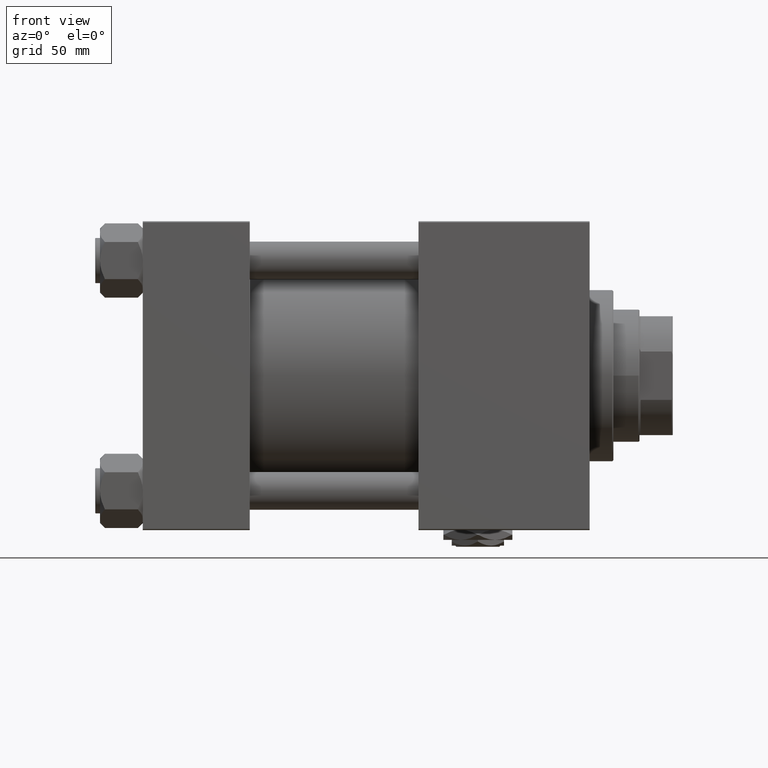
[diagram: clean part render]
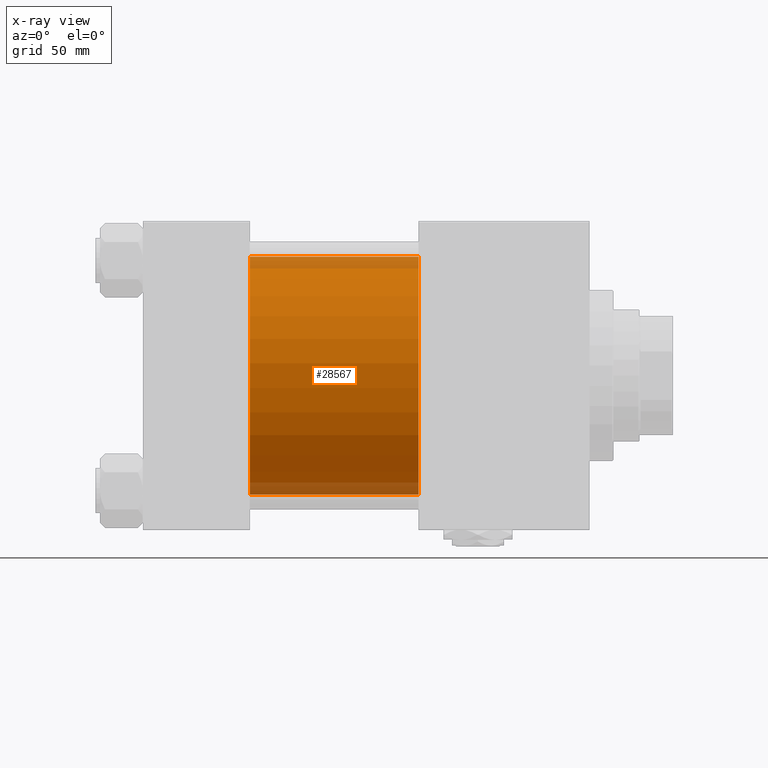
[diagram: x-ray — body ghosted, one internal face saturated and labeled with its STEP entity id]
A machine part, front view, then the same camera in x-ray: the body is ghosted and one INTERNAL B-rep face — a face not visible from any outside direction — is saturated and labeled: STEP entity #28567.
In plain terms, the highlighted cylindrical surface (partial cylindrical patch) has radius 50 mm, axis along (-1, -0, -0).
Its self-contained STEP definition (entity closure, byte-faithful):
#1161 = CARTESIAN_POINT ( 'NONE',  ( 45.00000000000000000, -2.602085213965210642E-15, 50.00000000000000000 ) ) ;
#1273 = VERTEX_POINT ( 'NONE', #36199 ) ;
#2087 = FACE_OUTER_BOUND ( 'NONE', #22231, .T. ) ;
#2526 = CARTESIAN_POINT ( 'NONE',  ( 115.9999999999999858, -2.602085213965210642E-15, 50.00000000000000000 ) ) ;
#3122 = DIRECTION ( 'NONE',  ( 1.000000000000000000, 0.000000000000000000, 0.000000000000000000 ) ) ;
#3217 = CIRCLE ( 'NONE', #31178, 50.00000000000000000 ) ;
#3945 = EDGE_CURVE ( 'NONE', #34048, #51460, #3217, .T. ) ;
#7639 = DIRECTION ( 'NONE',  ( 0.000000000000000000, 0.000000000000000000, -1.000000000000000000 ) ) ;
#8786 = DIRECTION ( 'NONE',  ( -1.000000000000000000, -0.000000000000000000, -0.000000000000000000 ) ) ;
#11846 = DIRECTION ( 'NONE',  ( 0.000000000000000000, 0.000000000000000000, 1.000000000000000000 ) ) ;
#12492 = EDGE_CURVE ( 'NONE', #43319, #1273, #15386, .T. ) ;
#13322 = LINE ( 'NONE', #26038, #51643 ) ;
#15386 = CIRCLE ( 'NONE', #44983, 50.00000000000000000 ) ;
#16056 = DIRECTION ( 'NONE',  ( 1.000000000000000000, 0.000000000000000000, 0.000000000000000000 ) ) ;
#22231 = EDGE_LOOP ( 'NONE', ( #23998, #50267, #27645, #35124 ) ) ;
#22277 = DIRECTION ( 'NONE',  ( -1.000000000000000000, -0.000000000000000000, -0.000000000000000000 ) ) ;
#23998 = ORIENTED_EDGE ( 'NONE', *, *, #12492, .T. ) ;
#26038 = CARTESIAN_POINT ( 'NONE',  ( 115.9999999999999858, 3.521148781771555838E-15, -50.00000000000000000 ) ) ;
#27489 = CYLINDRICAL_SURFACE ( 'NONE', #33647, 50.00000000000000000 ) ;
#27645 = ORIENTED_EDGE ( 'NONE', *, *, #3945, .F. ) ;
#28480 = DIRECTION ( 'NONE',  ( 0.000000000000000000, 0.000000000000000000, -1.000000000000000000 ) ) ;
#28567 = ADVANCED_FACE ( 'NONE', ( #2087 ), #27489, .F. ) ;
#28582 = VECTOR ( 'NONE', #51056, 1000.000000000000000 ) ;
#30020 = EDGE_CURVE ( 'NONE', #43319, #34048, #31177, .T. ) ;
#31177 = LINE ( 'NONE', #2526, #28582 ) ;
#31178 = AXIS2_PLACEMENT_3D ( 'NONE', #47432, #3122, #7639 ) ;
#33647 = AXIS2_PLACEMENT_3D ( 'NONE', #47377, #22277, #11846 ) ;
#34048 = VERTEX_POINT ( 'NONE', #1161 ) ;
#35124 = ORIENTED_EDGE ( 'NONE', *, *, #30020, .F. ) ;
#36199 = CARTESIAN_POINT ( 'NONE',  ( 115.9999999999999858, 3.521148781771555838E-15, -50.00000000000000000 ) ) ;
#38186 = EDGE_CURVE ( 'NONE', #1273, #51460, #13322, .T. ) ;
#40911 = CARTESIAN_POINT ( 'NONE',  ( 115.9999999999999858, -2.602085213965210642E-15, 50.00000000000000000 ) ) ;
#40943 = CARTESIAN_POINT ( 'NONE',  ( 115.9999999999999858, -2.602085213965210642E-15, 0.000000000000000000 ) ) ;
#43319 = VERTEX_POINT ( 'NONE', #40911 ) ;
#44001 = CARTESIAN_POINT ( 'NONE',  ( 45.00000000000000000, 3.521148781771555838E-15, -50.00000000000000000 ) ) ;
#44983 = AXIS2_PLACEMENT_3D ( 'NONE', #40943, #16056, #28480 ) ;
#47377 = CARTESIAN_POINT ( 'NONE',  ( 115.9999999999999858, -2.602085213965210642E-15, 0.000000000000000000 ) ) ;
#47432 = CARTESIAN_POINT ( 'NONE',  ( 45.00000000000000000, -2.602085213965210642E-15, 0.000000000000000000 ) ) ;
#50267 = ORIENTED_EDGE ( 'NONE', *, *, #38186, .T. ) ;
#51056 = DIRECTION ( 'NONE',  ( -1.000000000000000000, -0.000000000000000000, -0.000000000000000000 ) ) ;
#51460 = VERTEX_POINT ( 'NONE', #44001 ) ;
#51643 = VECTOR ( 'NONE', #8786, 1000.000000000000000 ) ;